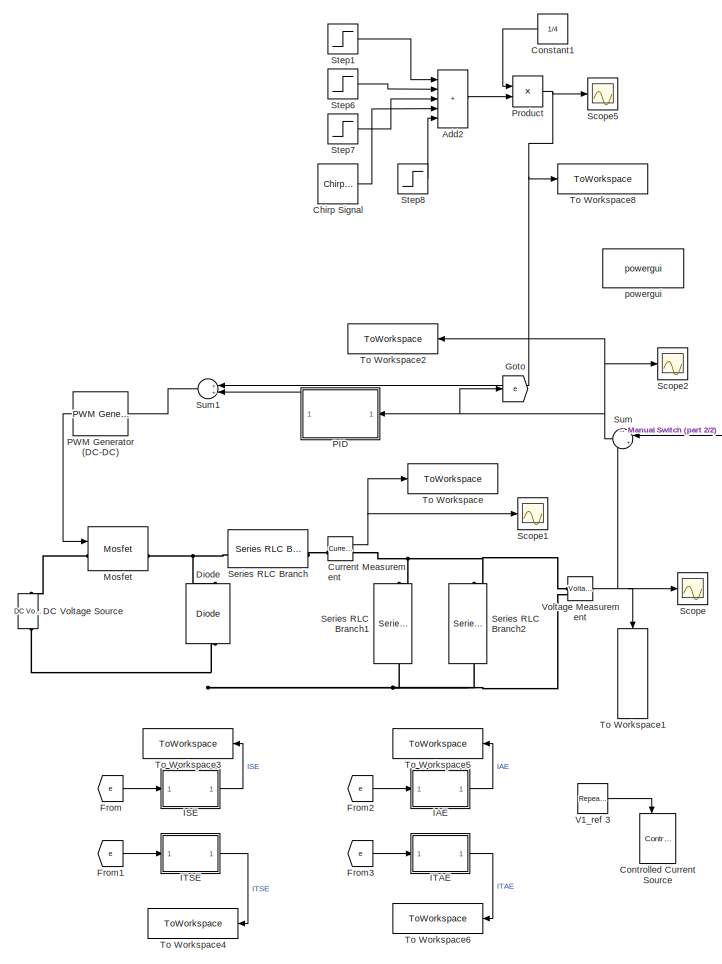
[diagram: root canvas - part 1/2, left side, full height]
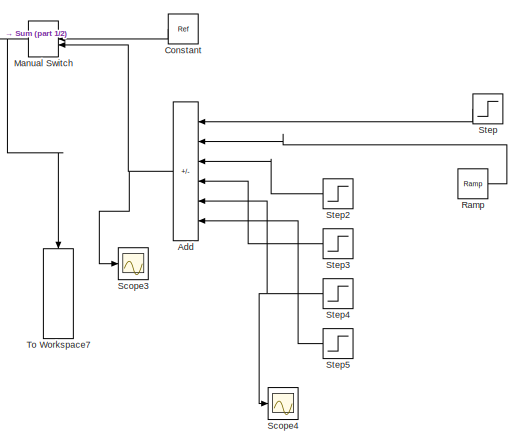
[diagram: root canvas - part 2/2, bottom right region]
MODEL slx_63d155e1f730
KIND model
CONFIG AbsTol = auto
CONFIG EnableMultiTasking = off
CONFIG FixedStep = Ts
CONFIG MaxStep = auto
CONFIG MinStep = auto
CONFIG RelTol = 1e-3
CONFIG SampleTimeConstraint = Unconstrained
CONFIG SolverName = ode4
CONFIG StartTime = 0.0
CONFIG StopTime = Tsin
BLOCK [Sum] Add
  IconShape = rectangular
  Inputs = ++--+-
  NameLocation = top
BLOCK [Sum] Add2
  IconShape = rectangular
  Inputs = +++++
BLOCK [Reference] Chirp Signal  REF=simulink/Sources/Chirp Signal
  SourceBlock = simulink/Sources/Chirp Signal
  SourceType = chirp
BLOCK [Constant] Constant
  NameLocation = top
  SampleTime = Ts
  Value = Ref
BLOCK [Constant] Constant1
  NameLocation = top
  SampleTime = Ts
  Value = 1/4
BLOCK [Reference] Controlled Current Source  REF=spsControlledCurrentSourceLib/Controlled Current Source
  Commented = on
  NameLocation = left
  SourceBlock = spsControlledCurrentSourceLib/Controlled Current Source
  SourceType = Controlled Current Source
BLOCK [Reference] Current Measurement  REF=spsCurrentMeasurementLib/Current Measurement
  SourceBlock = spsCurrentMeasurementLib/Current Measurement
  SourceType = Current Measurement
  UserDataPersistent = on
BLOCK [Reference] DC Voltage Source  REF=spsDCVoltageSourceLib/DC Voltage Source
  SourceBlock = spsDCVoltageSourceLib/DC Voltage Source
  SourceType = DC Voltage Source
BLOCK [Reference] Diode  REF=spsDiodeLib/Diode
  NameLocation = right
  SourceBlock = spsDiodeLib/Diode
  SourceType = Diode
BLOCK [From] From
  GotoTag = e
BLOCK [From] From1
  GotoTag = e
BLOCK [From] From2
  GotoTag = e
BLOCK [From] From3
  GotoTag = e
BLOCK [Goto] Goto
  GotoTag = e
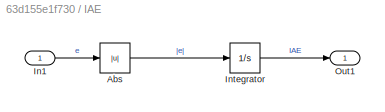
BLOCK [SubSystem] IAE
BLOCK [Abs] IAE/Abs
  SaturateOnIntegerOverflow = off
BLOCK [Inport] IAE/In1
BLOCK [Integrator] IAE/Integrator
BLOCK [Outport] IAE/Out1
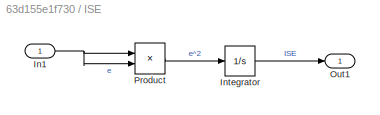
BLOCK [SubSystem] ISE
BLOCK [Inport] ISE/In1
BLOCK [Integrator] ISE/Integrator
BLOCK [Outport] ISE/Out1
BLOCK [Product] ISE/Product
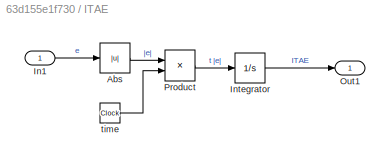
BLOCK [SubSystem] ITAE
BLOCK [Abs] ITAE/Abs
  SaturateOnIntegerOverflow = off
BLOCK [Inport] ITAE/In1
BLOCK [Integrator] ITAE/Integrator
BLOCK [Outport] ITAE/Out1
BLOCK [Product] ITAE/Product
BLOCK [Clock] ITAE/time
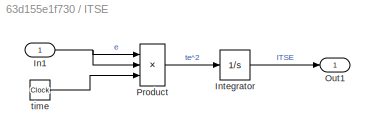
BLOCK [SubSystem] ITSE
BLOCK [Inport] ITSE/In1
BLOCK [Integrator] ITSE/Integrator
BLOCK [Outport] ITSE/Out1
BLOCK [Product] ITSE/Product
  Inputs = 3
BLOCK [Clock] ITSE/time
BLOCK [ManualSwitch] Manual Switch
  NameLocation = top
BLOCK [Reference] Mosfet  REF=spsMosfetLib/Mosfet
  SourceBlock = spsMosfetLib/Mosfet
  SourceType = Mosfet
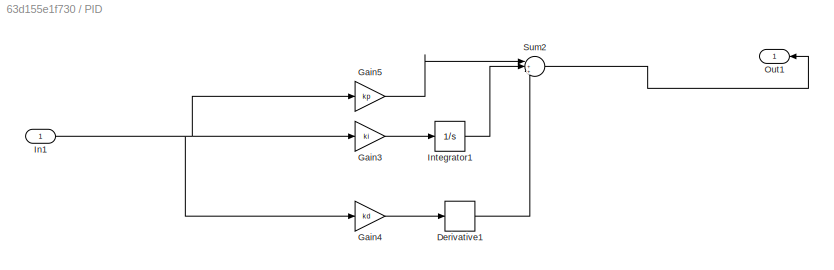
BLOCK [SubSystem] PID
  NameLocation = top
BLOCK [Derivative] PID/Derivative1
  CoefficientInTFapproximation = 10
BLOCK [Gain] PID/Gain3
  Gain = ki
BLOCK [Gain] PID/Gain4
  Gain = kd
BLOCK [Gain] PID/Gain5
  Gain = kp
BLOCK [Inport] PID/In1
BLOCK [Integrator] PID/Integrator1
BLOCK [Outport] PID/Out1
BLOCK [Sum] PID/Sum2
  Inputs = |+++
BLOCK [Reference] PWM Generator (DC-DC)  REF=spsPWMGeneratorDCDCLib/PWM Generator
(DC-DC)
  NameLocation = top
  SourceBlock = spsPWMGeneratorDCDCLib/PWM Generator\n(DC-DC)
  SourceType = PWM Generator (DC-DC)
BLOCK [Product] Product
BLOCK [Reference] Ramp  REF=simulink/Sources/Ramp
  SourceBlock = simulink/Sources/Ramp
  SourceType = Ramp
BLOCK [Scope] Scope
  Floating = off
  NumInputPorts = 1
  ScopeSpecificationString = Simulink.scopes.TimeScopeBlockCfg('CurrentConfiguration', extmgr.ConfigurationSet(extmgr.Configuration('Core','General UI',true),extmgr.Configuration('Core','Source UI',true),extmgr.Configuration('Sources','WiredSimulink',true,'SampleTime','Ts'),extmgr.Configuration('Visuals','Time Domain',true,'SerializedDisplays',{struct('MinYLimReal','-0.37587','MaxYLimReal','3.40442','YLabelReal','','MinYLimMa...<+1435ch>
BLOCK [Scope] Scope1
  Floating = off
  NumInputPorts = 1
  ScopeSpecificationString = Simulink.scopes.TimeScopeBlockCfg('CurrentConfiguration', extmgr.ConfigurationSet(extmgr.Configuration('Core','General UI',true),extmgr.Configuration('Core','Source UI',true),extmgr.Configuration('Sources','WiredSimulink',true,'SampleTime','Ts','DataLoggingVariableName','ScopeData1'),extmgr.Configuration('Visuals','Time Domain',true,'SerializedDisplays',{struct('MinYLimReal','0.48543','MaxYLimReal...<+1467ch>
BLOCK [Scope] Scope2
  Floating = off
  NumInputPorts = 1
  ScopeSpecificationString = Simulink.scopes.TimeScopeBlockCfg('CurrentConfiguration', extmgr.ConfigurationSet(extmgr.Configuration('Core','General UI',true),extmgr.Configuration('Core','Source UI',true),extmgr.Configuration('Sources','WiredSimulink',true,'SampleTime','Ts','DataLoggingVariableName','ScopeData1'),extmgr.Configuration('Visuals','Time Domain',true,'SerializedDisplays',{struct('MinYLimReal','-0.4198','MaxYLimReal...<+1451ch>
BLOCK [Scope] Scope3
  Floating = off
  NumInputPorts = 1
  ScopeSpecificationString = Simulink.scopes.TimeScopeBlockCfg('CurrentConfiguration', extmgr.ConfigurationSet(extmgr.Configuration('Core','General UI',true),extmgr.Configuration('Core','Source UI',true),extmgr.Configuration('Sources','WiredSimulink',true,'SampleTime','Ts','DataLoggingVariableName','ScopeData1'),extmgr.Configuration('Visuals','Time Domain',true,'SerializedDisplays',{struct('MinYLimReal','2.375','MaxYLimReal',...<+1434ch>
BLOCK [Scope] Scope4
  Floating = off
  NumInputPorts = 1
  ScopeSpecificationString = Simulink.scopes.TimeScopeBlockCfg('CurrentConfiguration', extmgr.ConfigurationSet(extmgr.Configuration('Core','General UI',true),extmgr.Configuration('Core','Source UI',true),extmgr.Configuration('Sources','WiredSimulink',true,'SampleTime','Ts','DataLoggingVariableName','ScopeData2'),extmgr.Configuration('Visuals','Time Domain',true,'SerializedDisplays',{struct('MinYLimReal','-0.625','MaxYLimReal'...<+1442ch>
BLOCK [Scope] Scope5
  Floating = off
  NumInputPorts = 1
  ScopeSpecificationString = Simulink.scopes.TimeScopeBlockCfg('CurrentConfiguration', extmgr.ConfigurationSet(extmgr.Configuration('Core','General UI',true),extmgr.Configuration('Core','Source UI',true),extmgr.Configuration('Sources','WiredSimulink',true,'SampleTime','Ts','DataLoggingVariableName','ScopeData3'),extmgr.Configuration('Visuals','Time Domain',true,'SerializedDisplays',{struct('MinYLimReal','-5.00000','MaxYLimRea...<+1464ch>
BLOCK [Reference] Series RLC Branch  REF=spsSeriesRLCBranchLib/Series RLC Branch
  NameLocation = top
  SourceBlock = spsSeriesRLCBranchLib/Series RLC Branch
  SourceType = Series RLC Branch
BLOCK [Reference] Series RLC Branch1  REF=spsSeriesRLCBranchLib/Series RLC Branch
  NameLocation = left
  SourceBlock = spsSeriesRLCBranchLib/Series RLC Branch
  SourceType = Series RLC Branch
BLOCK [Reference] Series RLC Branch2  REF=spsSeriesRLCBranchLib/Series RLC Branch
  NameLocation = left
  SourceBlock = spsSeriesRLCBranchLib/Series RLC Branch
  SourceType = Series RLC Branch
BLOCK [Step] Step
  After = 3
  NameLocation = top
  SampleTime = 0
  Time = Tsin/5
BLOCK [Step] Step1
  After = 0.5
  SampleTime = 0
  Time = 0
BLOCK [Step] Step2
  After = 2
  NameLocation = top
  SampleTime = 0
  Time = Tsin/3
BLOCK [Step] Step3
  After = -3
  NameLocation = top
  SampleTime = 0
  Time = Tsin/2
BLOCK [Step] Step4
  After = 3
  NameLocation = top
  SampleTime = 0
  Time = 0
BLOCK [Step] Step5
  After = 3
  NameLocation = top
  SampleTime = 0
  Time = 0.04
BLOCK [Step] Step6
  After = 0.3
  SampleTime = 0
  Time = Tsin/4
BLOCK [Step] Step7
  After = 0.4
  SampleTime = 0
  Time = Tsin/2
BLOCK [Step] Step8
  SampleTime = 0
  Time = 0
BLOCK [Sum] Sum
  Inputs = |+-
  NameLocation = top
BLOCK [Sum] Sum1
  NameLocation = top
BLOCK [ToWorkspace] To Workspace
  FixptAsFi = on
  MaxDataPoints = inf
  SampleTime = Ts
  SaveFormat = Structure With Time
  VariableName = ICC
BLOCK [ToWorkspace] To Workspace1
  FixptAsFi = on
  MaxDataPoints = inf
  NameLocation = left
  SampleTime = Ts
  SaveFormat = Structure With Time
  VariableName = Vout
BLOCK [ToWorkspace] To Workspace2
  FixptAsFi = on
  MaxDataPoints = inf
  SampleTime = Ts
  SaveFormat = Structure With Time
  VariableName = Ess
BLOCK [ToWorkspace] To Workspace3
  FixptAsFi = on
  MaxDataPoints = inf
  NameLocation = top
  SampleTime = Ts
  SaveFormat = Structure With Time
  VariableName = ISE
BLOCK [ToWorkspace] To Workspace4
  FixptAsFi = on
  MaxDataPoints = inf
  NameLocation = top
  SampleTime = Ts
  SaveFormat = Structure With Time
  VariableName = ITSE
BLOCK [ToWorkspace] To Workspace5
  FixptAsFi = on
  MaxDataPoints = inf
  NameLocation = top
  SampleTime = Ts
  SaveFormat = Structure With Time
  VariableName = IAE
BLOCK [ToWorkspace] To Workspace6
  FixptAsFi = on
  MaxDataPoints = inf
  NameLocation = top
  SampleTime = Ts
  SaveFormat = Structure With Time
  VariableName = ITAE
BLOCK [ToWorkspace] To Workspace7
  FixptAsFi = on
  MaxDataPoints = inf
  NameLocation = left
  SampleTime = Ts
  SaveFormat = Structure With Time
  VariableName = referencia
BLOCK [ToWorkspace] To Workspace8
  FixptAsFi = on
  MaxDataPoints = inf
  SampleTime = Ts
  SaveFormat = Structure With Time
  VariableName = ruido
BLOCK [Reference] V1_ref 3  REF=simulink/Sources/Repeating
Sequence
  Commented = on
  SourceBlock = simulink/Sources/Repeating\nSequence
  SourceType = Repeating table
BLOCK [Reference] Voltage Measurement  REF=spsVoltageMeasurementLib/Voltage Measurement
  SourceBlock = spsVoltageMeasurementLib/Voltage Measurement
  SourceType = Voltage Measurement
  UserDataPersistent = on
BLOCK [Reference] powergui  REF=spspowerguiLib/powergui
  Priority = 1
  SourceBlock = spspowerguiLib/powergui
  SourceType = PSB option menu block
LINE Add2:1 -> Product:2
NET Add:1 -> Manual Switch:2, Scope3:1
LINE Chirp Signal:1 -> Add2:4
LINE Constant1:1 -> Product:1
LINE Constant:1 -> Manual Switch:1
NET Current Measurement:1 -> Scope1:1, To Workspace:1
LINE From1:1 -> ITSE:1
LINE From2:1 -> IAE:1
LINE From3:1 -> ITAE:1
LINE From:1 -> ISE:1
LINE IAE/Abs:1 -> IAE/Integrator:1
LINE IAE/In1:1 -> IAE/Abs:1
LINE IAE/Integrator:1 -> IAE/Out1:1
LINE IAE:1 -> To Workspace5:1
NET ISE/In1:1 -> ISE/Product:1, ISE/Product:2
LINE ISE/Integrator:1 -> ISE/Out1:1
LINE ISE/Product:1 -> ISE/Integrator:1
LINE ISE:1 -> To Workspace3:1
LINE ITAE/Abs:1 -> ITAE/Product:1
LINE ITAE/In1:1 -> ITAE/Abs:1
LINE ITAE/Integrator:1 -> ITAE/Out1:1
LINE ITAE/Product:1 -> ITAE/Integrator:1
LINE ITAE/time:1 -> ITAE/Product:2
LINE ITAE:1 -> To Workspace6:1
NET ITSE/In1:1 -> ITSE/Product:1, ITSE/Product:2
LINE ITSE/Integrator:1 -> ITSE/Out1:1
LINE ITSE/Product:1 -> ITSE/Integrator:1
LINE ITSE/time:1 -> ITSE/Product:3
LINE ITSE:1 -> To Workspace4:1
NET Manual Switch:1 -> Sum:1, To Workspace7:1
LINE PID/Derivative1:1 -> PID/Sum2:3
LINE PID/Gain3:1 -> PID/Integrator1:1
LINE PID/Gain4:1 -> PID/Derivative1:1
LINE PID/Gain5:1 -> PID/Sum2:1
NET PID/In1:1 -> PID/Gain3:1, PID/Gain4:1, PID/Gain5:1
LINE PID/Integrator1:1 -> PID/Sum2:2
LINE PID/Sum2:1 -> PID/Out1:1
LINE PID:1 -> Sum1:2
LINE PWM Generator (DC-DC):1 -> Mosfet:1
NET Product:1 -> Scope5:1, Sum1:1, To Workspace8:1
LINE Ramp:1 -> Add:2
LINE Step1:1 -> Add2:1
LINE Step2:1 -> Add:3
LINE Step3:1 -> Add:4
NET Step4:1 -> Add:5, Scope4:1
LINE Step5:1 -> Add:6
LINE Step6:1 -> Add2:2
LINE Step7:1 -> Add2:3
LINE Step8:1 -> Add2:5
LINE Step:1 -> Add:1
LINE Sum1:1 -> PWM Generator (DC-DC):1
NET Sum:1 -> Goto:1, PID:1, Scope2:1, To Workspace2:1
LINE V1_ref 3:1 -> Controlled Current Source:1
NET Voltage Measurement:1 -> Scope:1, Sum:2, To Workspace1:1
PLINE Current Measurement:LConn1 -- Series RLC Branch:LConn1
PNET net1: Current Measurement:RConn1 -- Series RLC Branch1:LConn1 -- Series RLC Branch2:LConn1 -- Voltage Measurement:LConn1
PNET net2: DC Voltage Source:LConn1 -- Diode:LConn1 -- Series RLC Branch1:RConn1 -- Series RLC Branch2:RConn1 -- Voltage Measurement:LConn2
PLINE DC Voltage Source:RConn1 -- Mosfet:LConn1
PNET net3: Diode:RConn1 -- Mosfet:RConn1 -- Series RLC Branch:RConn1
note: NET lines group one-source signal fan-out (src -> all destinations, sorted); 1:1 wires keep LINE; PNET lines group multi-terminal physical nets as a canonical sorted terminal list (undirected conserving connections); 2-terminal nets keep the pairwise PLINE form
